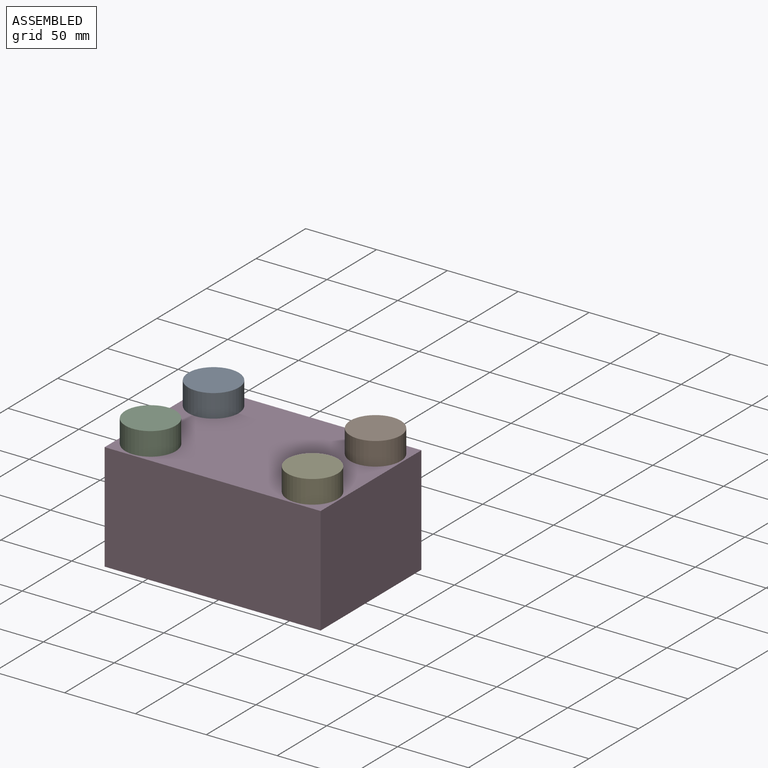
[diagram: assembled view]
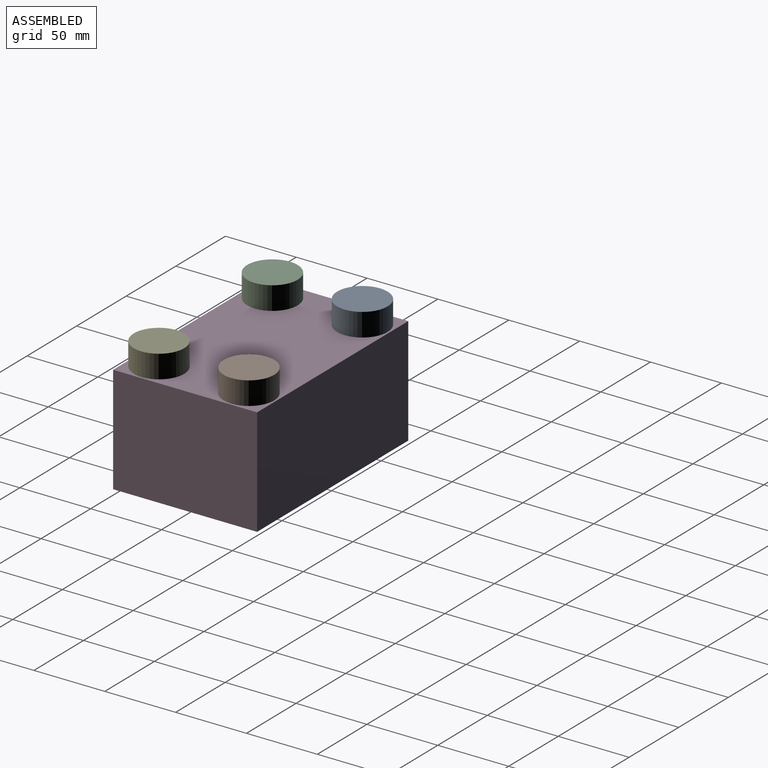
[diagram: assembled view, second angle]
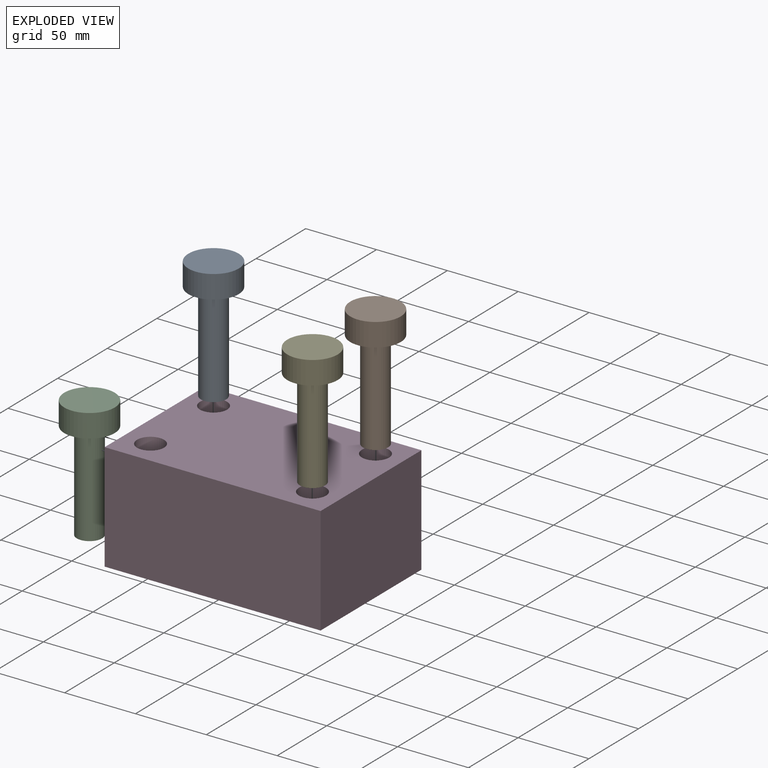
[diagram: exploded view]
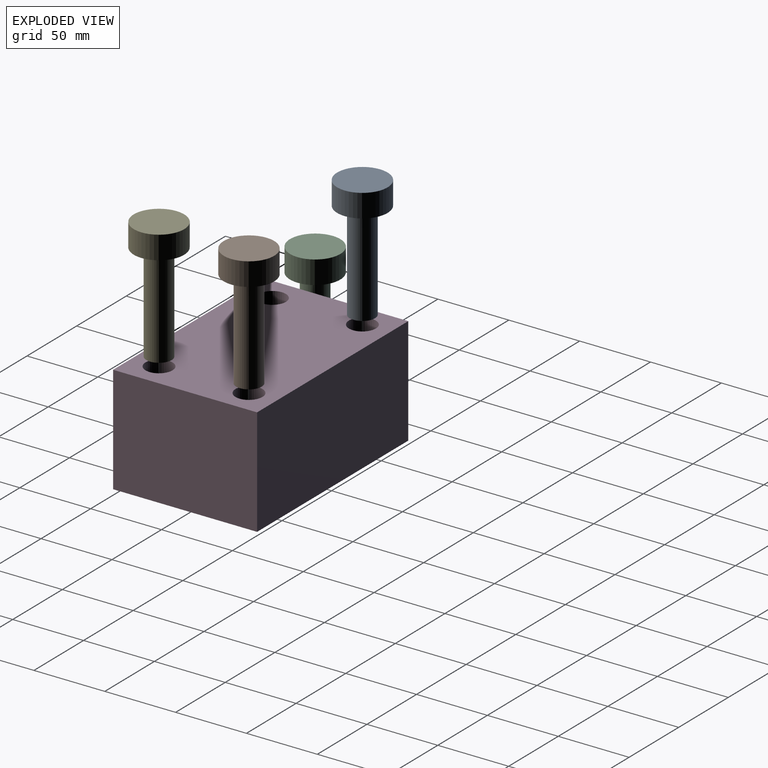
[diagram: exploded view, second angle]
ASSEMBLY  parts=5 mates=3
PART A: 5 faces, bbox 35.6x35.6x85.8 mm
  f0: plane 35.56x35.56mm, normal (0,0,1), area 993.1mm2, adj f4
  f1: plane 17.82x17.82mm, normal (0,0,-1), area 249.5mm2, adj f2
  f2: cylinder r=8.91mm len=69.52mm, axis (0,0,-1), area 3892.7mm2, adj f1,f3
  f3: plane 35.56x35.56mm, normal (0,0,-1), area 743.7mm2, adj f2,f4
  f4: cylinder r=17.78mm len=35.56mm, axis (0,0,-1), area 1823.4mm2, adj f0,f3
PART B: same geometry as A
PART C: same geometry as A
PART D: 10 faces, bbox 152.4x101.6x76.2 mm
  f0: plane 101.6x76.2mm, normal (1,0,0), area 7741.9mm2, adj f1,f6,f8,f9
  f1: plane 152.4x76.2mm, normal (0,1,0), area 11612.9mm2, adj f0,f2,f8,f9
  f2: plane 101.6x76.2mm, normal (-1,0,0), area 7741.9mm2, adj f1,f6,f8,f9
  f3: cylinder r=9.53mm len=76.2mm, axis (0,0,-1), area 4560.4mm2, adj f8,f9
  f4: cylinder r=9.53mm len=76.2mm, axis (0,0,-1), area 4560.4mm2, adj f8,f9
  f5: cylinder r=9.53mm len=76.2mm, axis (0,0,-1), area 4560.4mm2, adj f8,f9
  f6: plane 152.4x76.2mm, normal (0,-1,0), area 11612.9mm2, adj f0,f2,f8,f9
  f7: cylinder r=9.53mm len=76.2mm, axis (0,0,-1), area 4560.4mm2, adj f8,f9
  f8: plane 152.4x101.6mm, normal (0,0,1), area 14343.7mm2, adj f0,f1,f2,f3,f4,f5,f6,f7
  f9: plane 152.4x101.6mm, normal (0,0,-1), area 14343.7mm2, adj f0,f1,f2,f3,f4,f5,f6,f7
PART E: same geometry as A
PLACE A t=(0,63.5,0)mm
PLACE B rot(axis=(0,0,1),180deg) t=(0,0,0)mm
PLACE C at identity fixed
PLACE D at identity fixed
PLACE E rot(axis=(0,0,1),0deg) t=(114.3,0,0)mm
MATE fastened A.f2 <-> D.f4  axis (0,0,-1) through (-57.15,31.75,76.2)mm
MATE fastened E.f2 <-> D.f7  axis (0,0,-1) through (57.15,-31.75,76.2)mm
MATE fastened B.f2 <-> D.f5  axis (0,0,-1) through (57.15,31.75,76.2)mm
